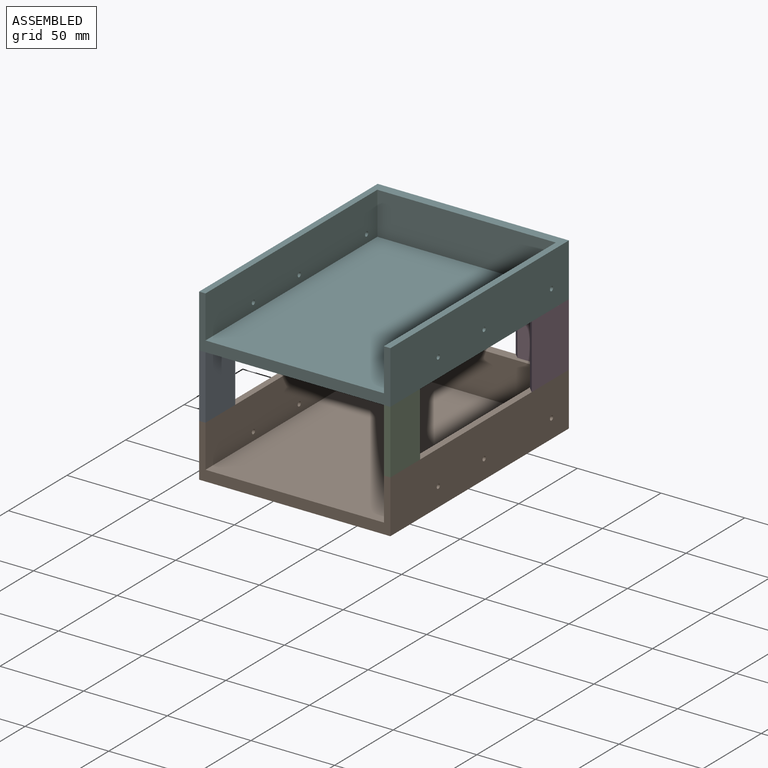
[diagram: assembled view]
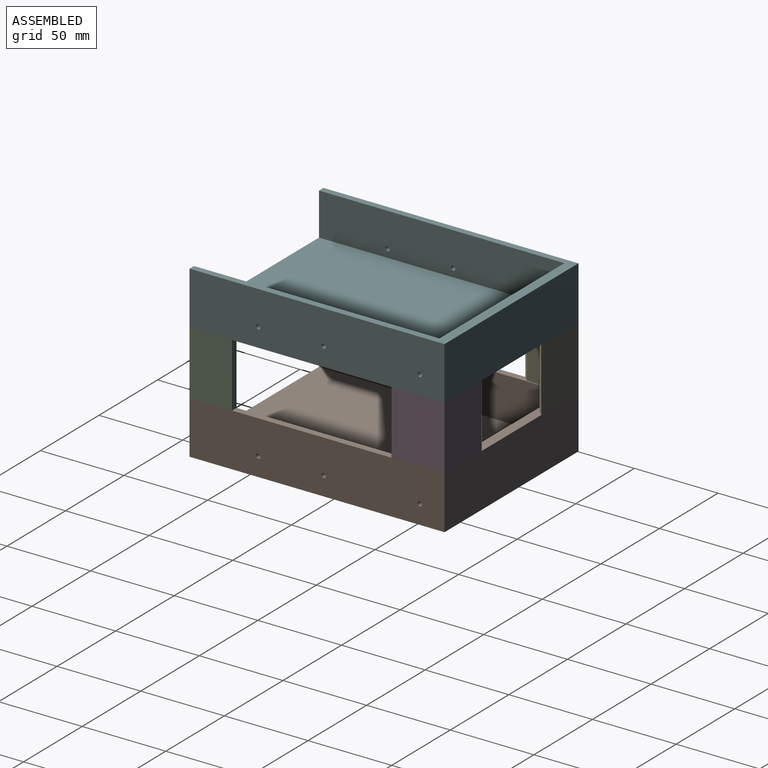
[diagram: assembled view, second angle]
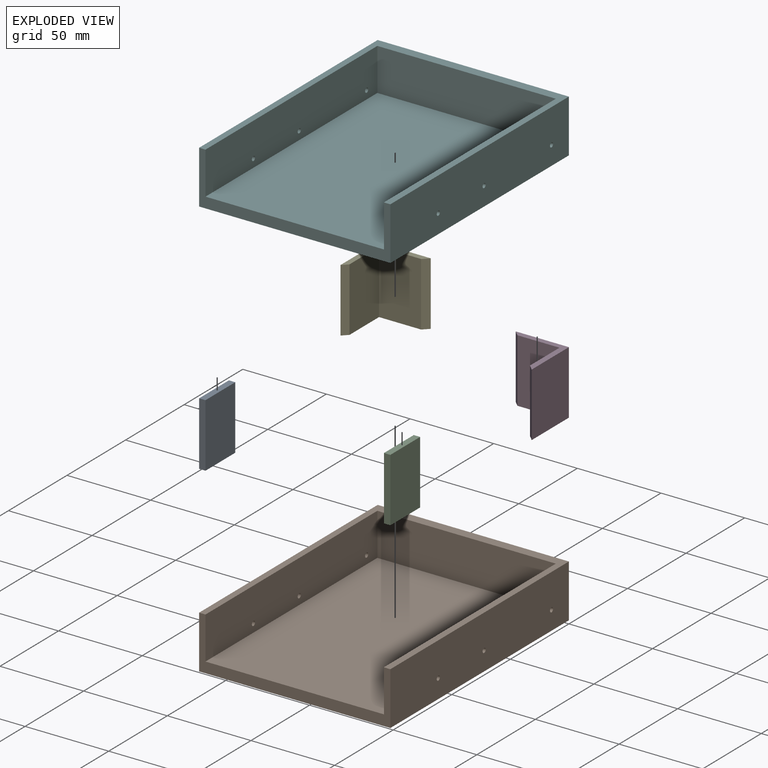
[diagram: exploded view]
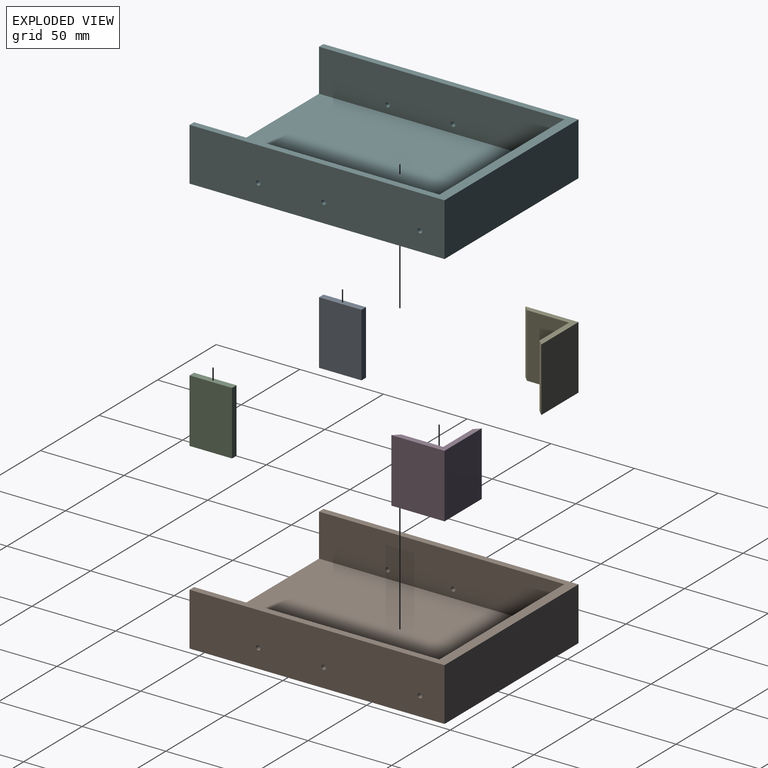
[diagram: exploded view, second angle]
ASSEMBLY  parts=6 mates=5
PART A: 6 faces, bbox 3.8x25.4x38.1 mm
  f0: plane 38.1x3.81mm, normal (0,1,0), area 145.2mm2, adj f1,f3,f4,f5
  f1: plane 38.1x25.4mm, normal (-1,0,0), area 967.7mm2, adj f0,f2,f4,f5
  f2: plane 38.1x3.81mm, normal (0,-1,0), area 145.2mm2, adj f1,f3,f4,f5
  f3: plane 38.1x25.4mm, normal (1,0,0), area 967.7mm2, adj f0,f2,f4,f5
  f4: plane 25.4x3.81mm, normal (0,0,1), area 96.8mm2, adj f0,f1,f2,f3
  f5: plane 25.4x3.81mm, normal (0,0,-1), area 96.8mm2, adj f0,f1,f2,f3
PART B: 16 faces, bbox 114.3x152.4x31.8 mm
  f0: plane 114.3x31.75mm, normal (0,-1,0), area 919.4mm2, adj f1,f3,f4,f5,f7,f8,f9
  f1: plane 152.4x31.75mm, normal (1,0,0), area 4821.9mm2, adj f0,f2,f4,f5,f10,f11,f12
  f2: plane 114.3x31.75mm, normal (0,1,0), area 3629mm2, adj f1,f3,f4,f5
  f3: plane 152.4x31.75mm, normal (-1,0,0), area 4821.9mm2, adj f0,f2,f4,f5,f13,f14,f15
  f4: plane 152.4x114.3mm, normal (0,0,1), area 1771mm2, adj f0,f1,f2,f3,f6,f7,f8
  f5: plane 152.4x114.3mm, normal (0,0,-1), area 17419.3mm2, adj f0,f1,f2,f3
  f6: plane 106.68x25.4mm, normal (0,-1,0), area 2709.7mm2, adj f4,f7,f8,f9
  f7: plane 146.69x25.4mm, normal (1,0,0), area 3709mm2, adj f0,f4,f6,f9,f13,f14,f15
  f8: plane 146.69x25.4mm, normal (-1,0,0), area 3709mm2, adj f0,f4,f6,f9,f10,f11,f12
  f9: plane 146.69x106.68mm, normal (0,0,1), area 15648.4mm2, adj f0,f6,f7,f8
  f10: cylinder r=1.33mm len=3.81mm, axis (1,0,0), area 31.9mm2, adj f1,f8
  f11: cylinder r=1.33mm len=3.81mm, axis (1,0,0), area 31.9mm2, adj f1,f8
  f12: cylinder r=1.33mm len=3.81mm, axis (1,0,0), area 31.9mm2, adj f1,f8
  f13: cylinder r=1.33mm len=3.81mm, axis (-1,0,0), area 31.9mm2, adj f3,f7
  f14: cylinder r=1.33mm len=3.81mm, axis (-1,0,0), area 31.9mm2, adj f3,f7
  f15: cylinder r=1.33mm len=3.81mm, axis (-1,0,0), area 31.9mm2, adj f3,f7
PART C: same geometry as A
PART D: 8 faces, bbox 31.8x31.8x38.1 mm
  f0: plane 38.1x3.37mm, normal (0.71,-0.71,0), area 181.7mm2, adj f1,f3,f5,f6
  f1: plane 31.75x31.75mm, normal (0,0,1), area 186.5mm2, adj f0,f2,f3,f4,f6,f7
  f2: plane 38.1x31.75mm, normal (0,1,0), area 1209.7mm2, adj f1,f3,f4,f5
  f3: plane 38.1x31.75mm, normal (-1,0,0), area 1209.7mm2, adj f0,f1,f2,f5
  f4: plane 38.1x3.18mm, normal (0.71,-0.71,0), area 171.1mm2, adj f1,f2,f5,f7
  f5: plane 31.75x31.75mm, normal (0,0,-1), area 186.5mm2, adj f0,f2,f3,f4,f6,f7
  f6: plane 38.1x25.2mm, normal (1,0,0), area 960.2mm2, adj f0,f1,f5,f7
  f7: plane 38.1x25.2mm, normal (0,-1,0), area 960.2mm2, adj f1,f4,f5,f6
PART E: same geometry as D
PART F: same geometry as B
PLACE A t=(-29.15,14.56,-45.09)mm
PLACE B t=(44.44,71.53,-76.84)mm
PLACE C t=(81.34,14.56,-45.09)mm
PLACE D rot(axis=(0,1,0),180deg) t=(94.87,133.17,-6.99)mm
PLACE E rot(axis=(-0.71,0.71,0),180deg) t=(1.85,141,-6.99)mm
PLACE F t=(44.44,71.53,-6.99)mm
MATE fastened F.f5 <-> E.f5  axis (0,0,-1) through (-12.71,147.73,-6.99)mm
MATE fastened A.f4 <-> F.f5  axis (0,0,1) through (-12.71,-4.67,-6.99)mm
MATE fastened E.f1 <-> B.f4  axis (0,0,-1) through (-12.71,147.73,-45.09)mm
MATE fastened D.f5 <-> F.f5  axis (0,0,1) through (101.59,147.73,-6.99)mm
MATE fastened F.f5 <-> C.f4  axis (0,0,-1) through (101.59,-4.67,-6.99)mm
